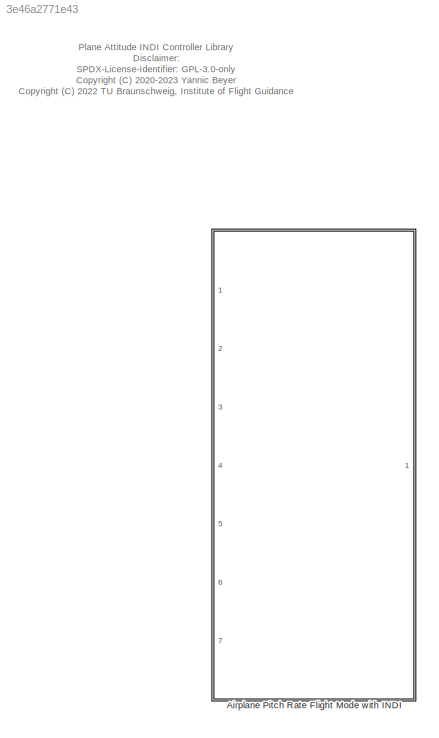
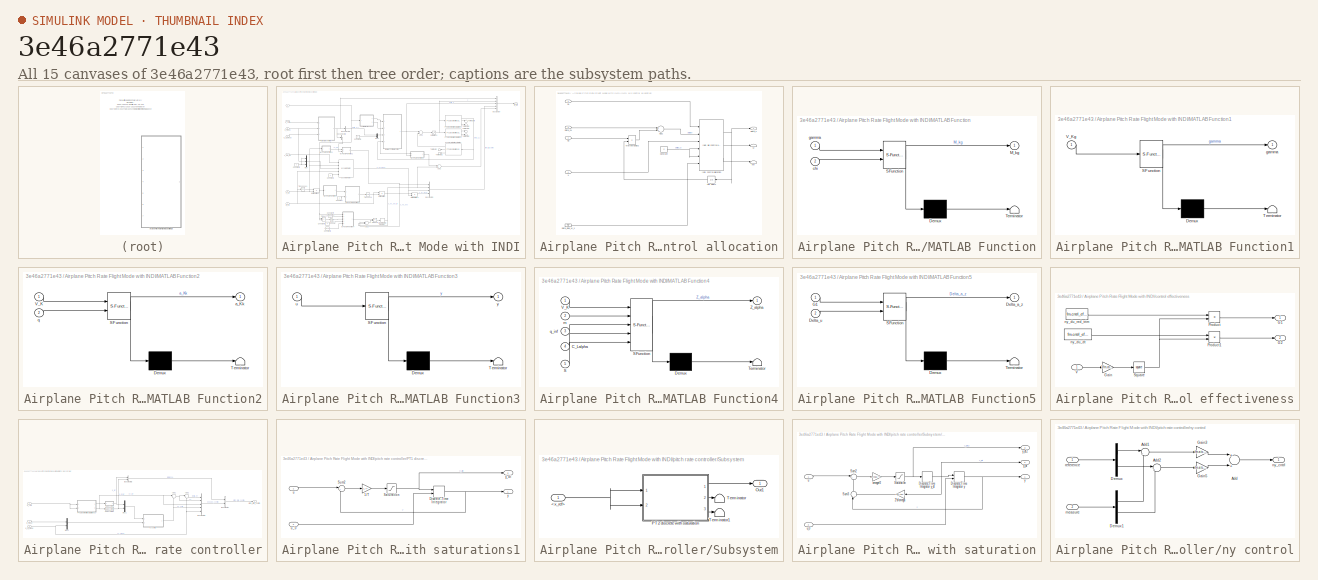
[diagram: thumbnail index - all 15 canvases of the model, root first then tree order]
MODEL slx_3e46a2771e43
KIND library
CONFIG AbsTol = auto
CONFIG EnableMultiTasking = off
CONFIG FixedStep = auto
CONFIG MaxStep = auto
CONFIG MinStep = auto
CONFIG RelTol = 1e-3
CONFIG SampleTimeConstraint = Unconstrained
CONFIG Solver = VariableStepAuto
CONFIG SolverName = VariableStepAuto
CONFIG StartTime = 0.0
CONFIG StopTime = 10.0
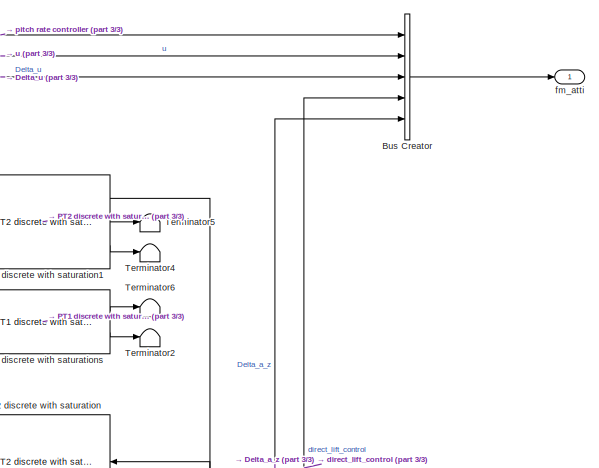
[diagram: Airplane Pitch Rate Flight Mode with INDI - part 1/3, top right region]
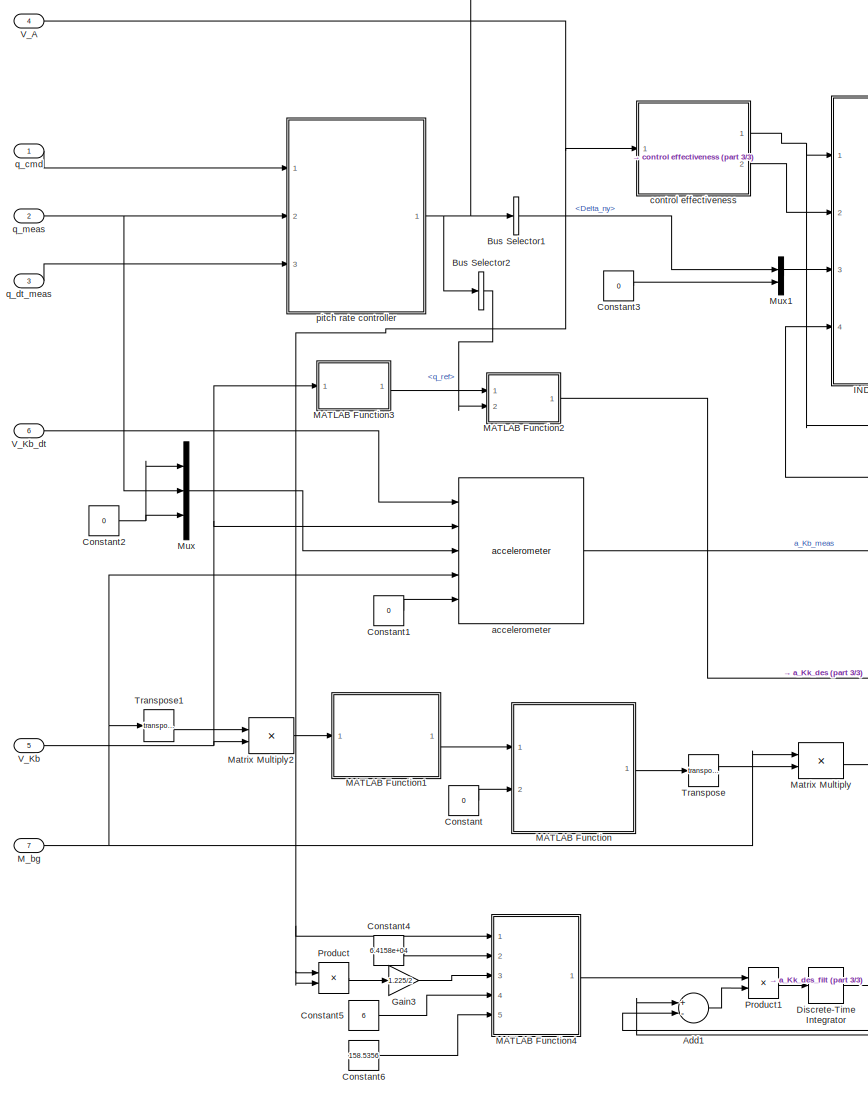
[diagram: Airplane Pitch Rate Flight Mode with INDI - part 2/3, left side, full height]
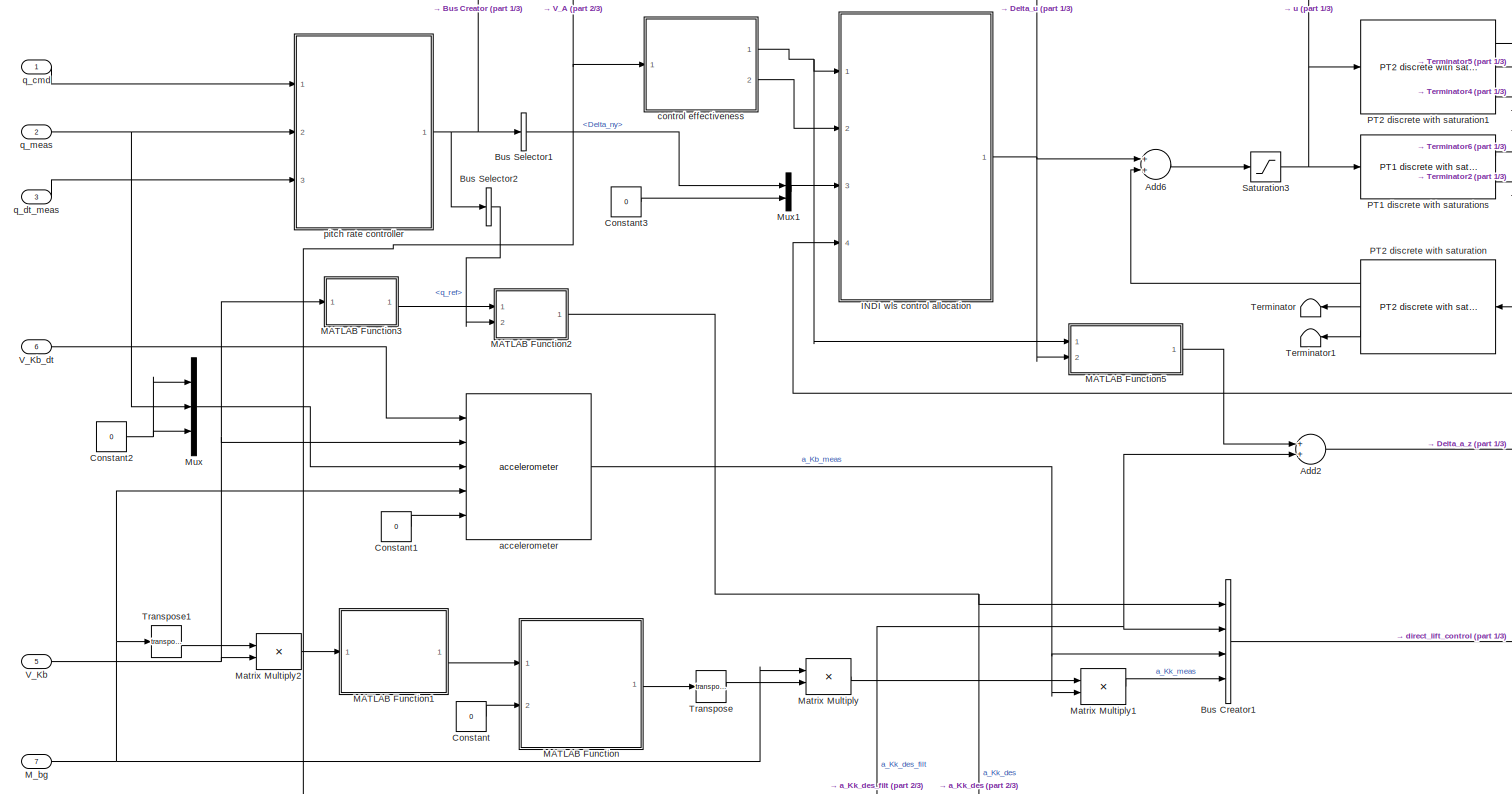
[diagram: Airplane Pitch Rate Flight Mode with INDI - part 3/3, full width, middle band]
BLOCK [SubSystem] Airplane Pitch Rate Flight Mode with INDI
  Ports = [7, 1]
  RequestExecContextInheritance = off
BLOCK [Sum] Airplane Pitch Rate Flight Mode with INDI/Add1
  InputSameDT = off
  Inputs = +-
  OutDataTypeStr = Inherit: Inherit via internal rule
  Ports = [2, 1]
  SaturateOnIntegerOverflow = off
BLOCK [Sum] Airplane Pitch Rate Flight Mode with INDI/Add2
  InputSameDT = off
  OutDataTypeStr = Inherit: Inherit via internal rule
  Ports = [2, 1]
  SaturateOnIntegerOverflow = off
BLOCK [Sum] Airplane Pitch Rate Flight Mode with INDI/Add6
  InputSameDT = off
  OutDataTypeStr = Inherit: Inherit via internal rule
  Ports = [2, 1]
  SaturateOnIntegerOverflow = off
BLOCK [BusCreator] Airplane Pitch Rate Flight Mode with INDI/Bus Creator
  DisplayOption = bar
  InheritFromInputs = on
  Inputs = 5
  Ports = [5, 1]
BLOCK [BusCreator] Airplane Pitch Rate Flight Mode with INDI/Bus Creator1
  DisplayOption = bar
  InheritFromInputs = on
  Inputs = 4
  Ports = [4, 1]
BLOCK [BusSelector] Airplane Pitch Rate Flight Mode with INDI/Bus Selector1
  OutputAsBus = off
  OutputSignals = pseudo_control.Delta_ny
  Ports = [1, 1]
BLOCK [BusSelector] Airplane Pitch Rate Flight Mode with INDI/Bus Selector2
  OutputAsBus = off
  OutputSignals = reference.q_ref
  Ports = [1, 1]
BLOCK [Constant] Airplane Pitch Rate Flight Mode with INDI/Constant
  Value = 0
BLOCK [Constant] Airplane Pitch Rate Flight Mode with INDI/Constant1
  Value = 0
  VectorParams1D = off
BLOCK [Constant] Airplane Pitch Rate Flight Mode with INDI/Constant2
  Value = 0
BLOCK [Constant] Airplane Pitch Rate Flight Mode with INDI/Constant3
  Value = 0
BLOCK [Constant] Airplane Pitch Rate Flight Mode with INDI/Constant4
  Value = 6.4158e+04
BLOCK [Constant] Airplane Pitch Rate Flight Mode with INDI/Constant5
  Value = 6
BLOCK [Constant] Airplane Pitch Rate Flight Mode with INDI/Constant6
  Value = 158.5356
BLOCK [DiscreteIntegrator] Airplane Pitch Rate Flight Mode with INDI/Discrete-Time Integrator
  ICPrevOutput = DiscIntNeverNeededParam
  ICPrevScaledInput = DiscIntNeverNeededParam
  InitialConditionSetting = Auto
  Ports = [1, 1]
  SampleTime = -1
BLOCK [Gain] Airplane Pitch Rate Flight Mode with INDI/Gain3
  Gain = 1.225/2
  OutDataTypeStr = Inherit: Inherit via internal rule
  ParamDataTypeStr = Inherit: Inherit via internal rule
  SaturateOnIntegerOverflow = off
BLOCK [SubSystem] Airplane Pitch Rate Flight Mode with INDI/INDI wls control allocation
  Ports = [4, 1]
  RequestExecContextInheritance = off
BLOCK [Sum] Airplane Pitch Rate Flight Mode with INDI/INDI wls control allocation/Add2
  InputSameDT = off
  OutDataTypeStr = Inherit: Inherit via internal rule
  Ports = [2, 1]
  SaturateOnIntegerOverflow = off
BLOCK [Constant] Airplane Pitch Rate Flight Mode with INDI/INDI wls control allocation/Constant
  Value = 0
BLOCK [Ground] Airplane Pitch Rate Flight Mode with INDI/INDI wls control allocation/Delta_diag_W_v
BLOCK [Inport] Airplane Pitch Rate Flight Mode with INDI/INDI wls control allocation/Delta_nu
  IconDisplay = Port number
  Port = 3
BLOCK [Outport] Airplane Pitch Rate Flight Mode with INDI/INDI wls control allocation/Delta_u
  IconDisplay = Port number
BLOCK [Inport] Airplane Pitch Rate Flight Mode with INDI/INDI wls control allocation/G1
  IconDisplay = Port number
BLOCK [Inport] Airplane Pitch Rate Flight Mode with INDI/INDI wls control allocation/G2
  IconDisplay = Port number
  Port = 2
BLOCK [Reference] Airplane Pitch Rate Flight Mode with INDI/INDI wls control allocation/INDI control allocation  REF=ca_lib/INDI wls control allocation  (lib defined in slx_0f34462aa2fc)
  Ports = [6, 3]
  SourceBlock = ca_lib/INDI wls control allocation
  SourceProductName = LADAC
BLOCK [Product] Airplane Pitch Rate Flight Mode with INDI/INDI wls control allocation/MatrixMultiply2
  InputSameDT = off
  Multiplication = Matrix(*)
  OutDataTypeStr = Inherit: Inherit via internal rule
  Ports = [2, 1]
  RndMeth = Floor
  SaturateOnIntegerOverflow = off
BLOCK [UnitDelay] Airplane Pitch Rate Flight Mode with INDI/INDI wls control allocation/Unit Delay1
  InputProcessing = Elements as channels (sample based)
  SampleTime = -1
BLOCK [Terminator] Airplane Pitch Rate Flight Mode with INDI/INDI wls control allocation/W
BLOCK [Terminator] Airplane Pitch Rate Flight Mode with INDI/INDI wls control allocation/iter
BLOCK [Inport] Airplane Pitch Rate Flight Mode with INDI/INDI wls control allocation/u
  IconDisplay = Port number
  Port = 4
BLOCK [SubSystem] Airplane Pitch Rate Flight Mode with INDI/MATLAB Function
  ErrorFcn = Stateflow.Translate.translate
  PermitHierarchicalResolution = ExplicitOnly
  Ports = [2, 1]
  RequestExecContextInheritance = off
  SFBlockType = MATLAB Function
  TreatAsAtomicUnit = on
BLOCK [Demux] Airplane Pitch Rate Flight Mode with INDI/MATLAB Function/ Demux 
  Outputs = 1
  Ports = [1, 1]
BLOCK [S-Function] Airplane Pitch Rate Flight Mode with INDI/MATLAB Function/ SFunction 
  EnableBusSupport = off
  FunctionName = sf_sfun
  PortCounts = [2 2]
  Ports = [2, 2]
  SFcnIsStateOwnerBlock = off
  SFunctionDeploymentMode = off
  Tag = Stateflow S-Function fmPlaneAttiIndi_lib 1
BLOCK [Terminator] Airplane Pitch Rate Flight Mode with INDI/MATLAB Function/ Terminator 
BLOCK [Outport] Airplane Pitch Rate Flight Mode with INDI/MATLAB Function/M_kg
  IconDisplay = Port number
BLOCK [Inport] Airplane Pitch Rate Flight Mode with INDI/MATLAB Function/chi
  IconDisplay = Port number
  Port = 2
BLOCK [Inport] Airplane Pitch Rate Flight Mode with INDI/MATLAB Function/gamma
  IconDisplay = Port number
BLOCK [SubSystem] Airplane Pitch Rate Flight Mode with INDI/MATLAB Function1
  ErrorFcn = Stateflow.Translate.translate
  PermitHierarchicalResolution = ExplicitOnly
  Ports = [1, 1]
  RequestExecContextInheritance = off
  SFBlockType = MATLAB Function
  TreatAsAtomicUnit = on
BLOCK [Demux] Airplane Pitch Rate Flight Mode with INDI/MATLAB Function1/ Demux 
  Outputs = 1
  Ports = [1, 1]
BLOCK [S-Function] Airplane Pitch Rate Flight Mode with INDI/MATLAB Function1/ SFunction 
  EnableBusSupport = off
  FunctionName = sf_sfun
  PortCounts = [1 2]
  Ports = [1, 2]
  SFcnIsStateOwnerBlock = off
  SFunctionDeploymentMode = off
  Tag = Stateflow S-Function fmPlaneAttiIndi_lib 3
BLOCK [Terminator] Airplane Pitch Rate Flight Mode with INDI/MATLAB Function1/ Terminator 
BLOCK [Inport] Airplane Pitch Rate Flight Mode with INDI/MATLAB Function1/V_Kg
  IconDisplay = Port number
BLOCK [Outport] Airplane Pitch Rate Flight Mode with INDI/MATLAB Function1/gamma
  IconDisplay = Port number
BLOCK [SubSystem] Airplane Pitch Rate Flight Mode with INDI/MATLAB Function2
  ErrorFcn = Stateflow.Translate.translate
  PermitHierarchicalResolution = ExplicitOnly
  Ports = [2, 1]
  RequestExecContextInheritance = off
  SFBlockType = MATLAB Function
  TreatAsAtomicUnit = on
BLOCK [Demux] Airplane Pitch Rate Flight Mode with INDI/MATLAB Function2/ Demux 
  Outputs = 1
  Ports = [1, 1]
BLOCK [S-Function] Airplane Pitch Rate Flight Mode with INDI/MATLAB Function2/ SFunction 
  EnableBusSupport = off
  FunctionName = sf_sfun
  PortCounts = [2 2]
  Ports = [2, 2]
  SFcnIsStateOwnerBlock = off
  SFunctionDeploymentMode = off
  Tag = Stateflow S-Function fmPlaneAttiIndi_lib 4
BLOCK [Terminator] Airplane Pitch Rate Flight Mode with INDI/MATLAB Function2/ Terminator 
BLOCK [Inport] Airplane Pitch Rate Flight Mode with INDI/MATLAB Function2/V_K
  IconDisplay = Port number
BLOCK [Outport] Airplane Pitch Rate Flight Mode with INDI/MATLAB Function2/a_Kk
  IconDisplay = Port number
BLOCK [Inport] Airplane Pitch Rate Flight Mode with INDI/MATLAB Function2/q
  IconDisplay = Port number
  Port = 2
BLOCK [SubSystem] Airplane Pitch Rate Flight Mode with INDI/MATLAB Function3
  ErrorFcn = Stateflow.Translate.translate
  PermitHierarchicalResolution = ExplicitOnly
  Ports = [1, 1]
  RequestExecContextInheritance = off
  SFBlockType = MATLAB Function
  TreatAsAtomicUnit = on
BLOCK [Demux] Airplane Pitch Rate Flight Mode with INDI/MATLAB Function3/ Demux 
  Outputs = 1
  Ports = [1, 1]
BLOCK [S-Function] Airplane Pitch Rate Flight Mode with INDI/MATLAB Function3/ SFunction 
  EnableBusSupport = off
  FunctionName = sf_sfun
  PortCounts = [1 2]
  Ports = [1, 2]
  SFcnIsStateOwnerBlock = off
  SFunctionDeploymentMode = off
  Tag = Stateflow S-Function fmPlaneAttiIndi_lib 5
BLOCK [Terminator] Airplane Pitch Rate Flight Mode with INDI/MATLAB Function3/ Terminator 
BLOCK [Inport] Airplane Pitch Rate Flight Mode with INDI/MATLAB Function3/u
  IconDisplay = Port number
BLOCK [Outport] Airplane Pitch Rate Flight Mode with INDI/MATLAB Function3/y
  IconDisplay = Port number
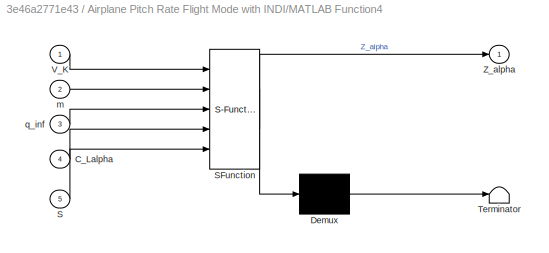
BLOCK [SubSystem] Airplane Pitch Rate Flight Mode with INDI/MATLAB Function4
  ErrorFcn = Stateflow.Translate.translate
  PermitHierarchicalResolution = ExplicitOnly
  Ports = [5, 1]
  RequestExecContextInheritance = off
  SFBlockType = MATLAB Function
  TreatAsAtomicUnit = on
BLOCK [Demux] Airplane Pitch Rate Flight Mode with INDI/MATLAB Function4/ Demux 
  Outputs = 1
  Ports = [1, 1]
BLOCK [S-Function] Airplane Pitch Rate Flight Mode with INDI/MATLAB Function4/ SFunction 
  EnableBusSupport = off
  FunctionName = sf_sfun
  PortCounts = [5 2]
  Ports = [5, 2]
  SFcnIsStateOwnerBlock = off
  SFunctionDeploymentMode = off
  Tag = Stateflow S-Function fmPlaneAttiIndi_lib 6
BLOCK [Terminator] Airplane Pitch Rate Flight Mode with INDI/MATLAB Function4/ Terminator 
BLOCK [Inport] Airplane Pitch Rate Flight Mode with INDI/MATLAB Function4/C_Lalpha
  IconDisplay = Port number
  Port = 4
BLOCK [Inport] Airplane Pitch Rate Flight Mode with INDI/MATLAB Function4/S
  IconDisplay = Port number
  Port = 5
BLOCK [Inport] Airplane Pitch Rate Flight Mode with INDI/MATLAB Function4/V_K
  IconDisplay = Port number
BLOCK [Outport] Airplane Pitch Rate Flight Mode with INDI/MATLAB Function4/Z_alpha
  IconDisplay = Port number
BLOCK [Inport] Airplane Pitch Rate Flight Mode with INDI/MATLAB Function4/m
  IconDisplay = Port number
  Port = 2
BLOCK [Inport] Airplane Pitch Rate Flight Mode with INDI/MATLAB Function4/q_inf
  IconDisplay = Port number
  Port = 3
BLOCK [SubSystem] Airplane Pitch Rate Flight Mode with INDI/MATLAB Function5
  ErrorFcn = Stateflow.Translate.translate
  PermitHierarchicalResolution = ExplicitOnly
  Ports = [2, 1]
  RequestExecContextInheritance = off
  SFBlockType = MATLAB Function
  TreatAsAtomicUnit = on
BLOCK [Demux] Airplane Pitch Rate Flight Mode with INDI/MATLAB Function5/ Demux 
  Outputs = 1
  Ports = [1, 1]
BLOCK [S-Function] Airplane Pitch Rate Flight Mode with INDI/MATLAB Function5/ SFunction 
  EnableBusSupport = off
  FunctionName = sf_sfun
  PortCounts = [2 2]
  Ports = [2, 2]
  SFcnIsStateOwnerBlock = off
  SFunctionDeploymentMode = off
  Tag = Stateflow S-Function fmPlaneAttiIndi_lib 7
BLOCK [Terminator] Airplane Pitch Rate Flight Mode with INDI/MATLAB Function5/ Terminator 
BLOCK [Outport] Airplane Pitch Rate Flight Mode with INDI/MATLAB Function5/Delta_a_z
  IconDisplay = Port number
BLOCK [Inport] Airplane Pitch Rate Flight Mode with INDI/MATLAB Function5/Delta_u
  IconDisplay = Port number
  Port = 2
BLOCK [Inport] Airplane Pitch Rate Flight Mode with INDI/MATLAB Function5/G1
  IconDisplay = Port number
BLOCK [Inport] Airplane Pitch Rate Flight Mode with INDI/M_bg
  IconDisplay = Port number
  Port = 7
  SampleTime = fm.sample_time
BLOCK [Product] Airplane Pitch Rate Flight Mode with INDI/Matrix Multiply
  InputSameDT = off
  Multiplication = Matrix(*)
  OutDataTypeStr = Inherit: Inherit via internal rule
  Ports = [2, 1]
  RndMeth = Floor
  SaturateOnIntegerOverflow = off
BLOCK [Product] Airplane Pitch Rate Flight Mode with INDI/Matrix Multiply1
  InputSameDT = off
  Multiplication = Matrix(*)
  OutDataTypeStr = Inherit: Inherit via internal rule
  Ports = [2, 1]
  RndMeth = Floor
  SaturateOnIntegerOverflow = off
BLOCK [Product] Airplane Pitch Rate Flight Mode with INDI/Matrix Multiply2
  InputSameDT = off
  Multiplication = Matrix(*)
  OutDataTypeStr = Inherit: Inherit via internal rule
  Ports = [2, 1]
  RndMeth = Floor
  SaturateOnIntegerOverflow = off
BLOCK [Mux] Airplane Pitch Rate Flight Mode with INDI/Mux
  DisplayOption = bar
  Inputs = 3
  Ports = [3, 1]
BLOCK [Mux] Airplane Pitch Rate Flight Mode with INDI/Mux1
  DisplayOption = bar
  Inputs = 2
  Ports = [2, 1]
BLOCK [Reference] Airplane Pitch Rate Flight Mode with INDI/PT1 discrete with saturations  REF=filters_lib/PT1 discrete with saturations  (lib defined in slx_a584fcc4ebc5)
  Ports = [1, 2]
  SourceBlock = filters_lib/PT1 discrete with saturations
  SourceProductName = LADAC
BLOCK [Reference] Airplane Pitch Rate Flight Mode with INDI/PT2 discrete with saturation  REF=filters_lib/PT2 discrete with saturation  (lib defined in slx_a584fcc4ebc5)
  Ports = [1, 3]
  SourceBlock = filters_lib/PT2 discrete with saturation
  SourceProductName = LADAC
BLOCK [Reference] Airplane Pitch Rate Flight Mode with INDI/PT2 discrete with saturation1  REF=filters_lib/PT2 discrete with saturation  (lib defined in slx_a584fcc4ebc5)
  Ports = [1, 3]
  SourceBlock = filters_lib/PT2 discrete with saturation
  SourceProductName = LADAC
BLOCK [Product] Airplane Pitch Rate Flight Mode with INDI/Product
  InputSameDT = off
  OutDataTypeStr = Inherit: Inherit via internal rule
  Ports = [2, 1]
  RndMeth = Floor
  SaturateOnIntegerOverflow = off
BLOCK [Product] Airplane Pitch Rate Flight Mode with INDI/Product1
  InputSameDT = off
  OutDataTypeStr = Inherit: Inherit via internal rule
  Ports = [2, 1]
  RndMeth = Floor
  SaturateOnIntegerOverflow = off
BLOCK [Saturate] Airplane Pitch Rate Flight Mode with INDI/Saturation3
  InputPortMap = u0
  LowerLimit = fm.ca.u_min
  Ports = [1, 1]
  UpperLimit = fm.ca.u_max
BLOCK [Terminator] Airplane Pitch Rate Flight Mode with INDI/Terminator
BLOCK [Terminator] Airplane Pitch Rate Flight Mode with INDI/Terminator1
BLOCK [Terminator] Airplane Pitch Rate Flight Mode with INDI/Terminator2
BLOCK [Terminator] Airplane Pitch Rate Flight Mode with INDI/Terminator4
BLOCK [Terminator] Airplane Pitch Rate Flight Mode with INDI/Terminator5
BLOCK [Terminator] Airplane Pitch Rate Flight Mode with INDI/Terminator6
BLOCK [Math] Airplane Pitch Rate Flight Mode with INDI/Transpose
  Operator = transpose
  Ports = [1, 1]
BLOCK [Math] Airplane Pitch Rate Flight Mode with INDI/Transpose1
  Operator = transpose
  Ports = [1, 1]
BLOCK [Inport] Airplane Pitch Rate Flight Mode with INDI/V_A
  IconDisplay = Port number
  Port = 4
  SampleTime = fm.sample_time
BLOCK [Inport] Airplane Pitch Rate Flight Mode with INDI/V_Kb
  IconDisplay = Port number
  Port = 5
  SampleTime = fm.sample_time
BLOCK [Inport] Airplane Pitch Rate Flight Mode with INDI/V_Kb_dt
  IconDisplay = Port number
  Port = 6
  SampleTime = fm.sample_time
BLOCK [Reference] Airplane Pitch Rate Flight Mode with INDI/accelerometer  REF=sensors_lib/accelerometer  (lib defined in mdl_052e9be48c24, mdl_88e42053cf8c, +1 more)
  Ports = [5, 1]
  SourceBlock = sensors_lib/accelerometer
  SourceProductName = LADAC
  SourceType = SubSystem
BLOCK [SubSystem] Airplane Pitch Rate Flight Mode with INDI/control effectiveness
  Ports = [1, 2]
  RequestExecContextInheritance = off
BLOCK [Outport] Airplane Pitch Rate Flight Mode with INDI/control effectiveness/G1
  IconDisplay = Port number
BLOCK [Outport] Airplane Pitch Rate Flight Mode with INDI/control effectiveness/G2
  IconDisplay = Port number
  Port = 2
BLOCK [Gain] Airplane Pitch Rate Flight Mode with INDI/control effectiveness/Gain
  Gain = 1/fm.cntrl_effect.V_trim
  OutDataTypeStr = Inherit: Inherit via internal rule
  ParamDataTypeStr = Inherit: Inherit via internal rule
  SaturateOnIntegerOverflow = off
BLOCK [Product] Airplane Pitch Rate Flight Mode with INDI/control effectiveness/Product
  InputSameDT = off
  OutDataTypeStr = Inherit: Inherit via internal rule
  Ports = [2, 1]
  RndMeth = Floor
  SaturateOnIntegerOverflow = off
BLOCK [Product] Airplane Pitch Rate Flight Mode with INDI/control effectiveness/Product1
  InputSameDT = off
  OutDataTypeStr = Inherit: Inherit via internal rule
  Ports = [2, 1]
  RndMeth = Floor
  SaturateOnIntegerOverflow = off
BLOCK [Math] Airplane Pitch Rate Flight Mode with INDI/control effectiveness/Square
  Operator = square
  Ports = [1, 1]
BLOCK [Inport] Airplane Pitch Rate Flight Mode with INDI/control effectiveness/V
  IconDisplay = Port number
BLOCK [Constant] Airplane Pitch Rate Flight Mode with INDI/control effectiveness/ny_du_dt
  Value = fm.cntrl_effect.ny_du_dt
BLOCK [Constant] Airplane Pitch Rate Flight Mode with INDI/control effectiveness/ny_du_red_trim
  Value = fm.cntrl_effect.ny_du_red
BLOCK [Outport] Airplane Pitch Rate Flight Mode with INDI/fm_atti
  IconDisplay = Port number
  SampleTime = fm.sample_time
  SamplingMode = Sample based
  SignalType = real
BLOCK [SubSystem] Airplane Pitch Rate Flight Mode with INDI/pitch rate controller
  Ports = [3, 1]
  RequestExecContextInheritance = off
BLOCK [Sum] Airplane Pitch Rate Flight Mode with INDI/pitch rate controller/Add1
  IconShape = round
  InputSameDT = off
  Inputs = |++
  OutDataTypeStr = Inherit: Inherit via internal rule
  Ports = [2, 1]
  SaturateOnIntegerOverflow = off
BLOCK [Sum] Airplane Pitch Rate Flight Mode with INDI/pitch rate controller/Add2
  IconShape = round
  InputSameDT = off
  Inputs = |+-
  OutDataTypeStr = Inherit: Inherit via internal rule
  Ports = [2, 1]
  SaturateOnIntegerOverflow = off
BLOCK [BusCreator] Airplane Pitch Rate Flight Mode with INDI/pitch rate controller/Bus Creator
  DisplayOption = bar
  InheritFromInputs = on
  Inputs = 2
  Ports = [2, 1]
BLOCK [BusCreator] Airplane Pitch Rate Flight Mode with INDI/pitch rate controller/Bus Creator1
  DisplayOption = bar
  InheritFromInputs = on
  Inputs = 5
  Ports = [5, 1]
BLOCK [BusCreator] Airplane Pitch Rate Flight Mode with INDI/pitch rate controller/Bus Creator2
  DisplayOption = bar
  InheritFromInputs = on
  Inputs = 2
  Ports = [2, 1]
BLOCK [Mux] Airplane Pitch Rate Flight Mode with INDI/pitch rate controller/Mux1
  DisplayOption = bar
  Inputs = 2
  Ports = [2, 1]
BLOCK [Mux] Airplane Pitch Rate Flight Mode with INDI/pitch rate controller/Mux2
  DisplayOption = bar
  Inputs = 2
  Ports = [2, 1]
BLOCK [SubSystem] Airplane Pitch Rate Flight Mode with INDI/pitch rate controller/PT1 discrete with saturations1
  Ports = [2, 2]
  RequestExecContextInheritance = off
BLOCK [Gain] Airplane Pitch Rate Flight Mode with INDI/pitch rate controller/PT1 discrete with saturations1/1//T
  Gain = 1./T
  OutDataTypeStr = Inherit: Inherit via internal rule
  ParamDataTypeStr = Inherit: Inherit via internal rule
  SaturateOnIntegerOverflow = off
BLOCK [DiscreteIntegrator] Airplane Pitch Rate Flight Mode with INDI/pitch rate controller/PT1 discrete with saturations1/Discrete-Time Integrator
  ICPrevOutput = DiscIntNeverNeededParam
  ICPrevScaledInput = DiscIntNeverNeededParam
  InitialCondition = x_init
  InitialConditionSetting = Auto
  InitialConditionSource = external
  LimitOutput = on
  LowerSaturationLimit = x_min
  Ports = [2, 1]
  SampleTime = -1
  UpperSaturationLimit = x_max
BLOCK [Saturate] Airplane Pitch Rate Flight Mode with INDI/pitch rate controller/PT1 discrete with saturations1/Saturation
  InputPortMap = u0
  LowerLimit = x_dt_min
  Ports = [1, 1]
  UpperLimit = x_dt_max
BLOCK [Sum] Airplane Pitch Rate Flight Mode with INDI/pitch rate controller/PT1 discrete with saturations1/Sum2
  IconShape = round
  InputSameDT = off
  Inputs = |+-
  OutDataTypeStr = Inherit: Inherit via internal rule
  Ports = [2, 1]
  SaturateOnIntegerOverflow = off
BLOCK [Inport] Airplane Pitch Rate Flight Mode with INDI/pitch rate controller/PT1 discrete with saturations1/u
  IconDisplay = Port number
BLOCK [Inport] Airplane Pitch Rate Flight Mode with INDI/pitch rate controller/PT1 discrete with saturations1/u_0 
  IconDisplay = Port number
  Port = 2
BLOCK [Outport] Airplane Pitch Rate Flight Mode with INDI/pitch rate controller/PT1 discrete with saturations1/y
  IconDisplay = Port number
BLOCK [Outport] Airplane Pitch Rate Flight Mode with INDI/pitch rate controller/PT1 discrete with saturations1/y_dt
  IconDisplay = Port number
  Port = 2
BLOCK [SubSystem] Airplane Pitch Rate Flight Mode with INDI/pitch rate controller/Subsystem
  Ports = [1, 1]
  RequestExecContextInheritance = off
BLOCK [Inport] Airplane Pitch Rate Flight Mode with INDI/pitch rate controller/Subsystem/<x_ref>
  IconDisplay = Port number
BLOCK [Outport] Airplane Pitch Rate Flight Mode with INDI/pitch rate controller/Subsystem/Out1
  IconDisplay = Port number
BLOCK [SubSystem] Airplane Pitch Rate Flight Mode with INDI/pitch rate controller/Subsystem/PT2 discrete with saturation
  Ports = [2, 3]
  RequestExecContextInheritance = off
BLOCK [Gain] Airplane Pitch Rate Flight Mode with INDI/pitch rate controller/Subsystem/PT2 discrete with saturation/2*d//omega
  Gain = 2*d./omega
  OutDataTypeStr = Inherit: Inherit via internal rule
  ParamDataTypeStr = Inherit: Inherit via internal rule
  SaturateOnIntegerOverflow = off
BLOCK [DiscreteIntegrator] Airplane Pitch Rate Flight Mode with INDI/pitch rate controller/Subsystem/PT2 discrete with saturation/Discrete-Time Integrator y
  ICPrevOutput = DiscIntNeverNeededParam
  ICPrevScaledInput = DiscIntNeverNeededParam
  InitialCondition = x_init
  InitialConditionSetting = Auto
  InitialConditionSource = external
  LimitOutput = on
  LowerSaturationLimit = x_min
  OutDataTypeStr = Inherit: Inherit via back propagation
  Ports = [2, 1]
  SampleTime = -1
  UpperSaturationLimit = x_max
BLOCK [DiscreteIntegrator] Airplane Pitch Rate Flight Mode with INDI/pitch rate controller/Subsystem/PT2 discrete with saturation/Discrete-Time Integrator y_dt
  ICPrevOutput = DiscIntNeverNeededParam
  ICPrevScaledInput = DiscIntNeverNeededParam
  InitialCondition = x_dt_init
  InitialConditionSetting = Auto
  LimitOutput = on
  LowerSaturationLimit = x_dt_min
  OutDataTypeStr = Inherit: Inherit via back propagation
  Ports = [1, 1]
  SampleTime = -1
  UpperSaturationLimit = x_dt_max
BLOCK [Saturate] Airplane Pitch Rate Flight Mode with INDI/pitch rate controller/Subsystem/PT2 discrete with saturation/Saturation
  InputPortMap = u0
  LowerLimit = x_dt2_min
  Ports = [1, 1]
  UpperLimit = x_dt2_max
BLOCK [Sum] Airplane Pitch Rate Flight Mode with INDI/pitch rate controller/Subsystem/PT2 discrete with saturation/Sum2
  IconShape = round
  InputSameDT = off
  Inputs = |+-
  OutDataTypeStr = Inherit: Inherit via internal rule
  Ports = [2, 1]
  SaturateOnIntegerOverflow = off
BLOCK [Sum] Airplane Pitch Rate Flight Mode with INDI/pitch rate controller/Subsystem/PT2 discrete with saturation/Sum3
  IconShape = round
  InputSameDT = off
  Inputs = |++
  OutDataTypeStr = Inherit: Inherit via internal rule
  Ports = [2, 1]
  SaturateOnIntegerOverflow = off
BLOCK [Gain] Airplane Pitch Rate Flight Mode with INDI/pitch rate controller/Subsystem/PT2 discrete with saturation/omega^2
  Gain = omega.^2
  OutDataTypeStr = Inherit: Inherit via internal rule
  ParamDataTypeStr = Inherit: Inherit via internal rule
  SaturateOnIntegerOverflow = off
BLOCK [Inport] Airplane Pitch Rate Flight Mode with INDI/pitch rate controller/Subsystem/PT2 discrete with saturation/u
  IconDisplay = Port number
BLOCK [Inport] Airplane Pitch Rate Flight Mode with INDI/pitch rate controller/Subsystem/PT2 discrete with saturation/u_0
  IconDisplay = Port number
  Port = 2
BLOCK [Outport] Airplane Pitch Rate Flight Mode with INDI/pitch rate controller/Subsystem/PT2 discrete with saturation/y
  IconDisplay = Port number
BLOCK [Outport] Airplane Pitch Rate Flight Mode with INDI/pitch rate controller/Subsystem/PT2 discrete with saturation/y_dt
  IconDisplay = Port number
  Port = 2
BLOCK [Outport] Airplane Pitch Rate Flight Mode with INDI/pitch rate controller/Subsystem/PT2 discrete with saturation/y_dt2
  IconDisplay = Port number
  Port = 3
BLOCK [Terminator] Airplane Pitch Rate Flight Mode with INDI/pitch rate controller/Subsystem/Terminator
BLOCK [Terminator] Airplane Pitch Rate Flight Mode with INDI/pitch rate controller/Subsystem/Terminator1
BLOCK [Reference] Airplane Pitch Rate Flight Mode with INDI/pitch rate controller/Subsystem1  REF=$bdroot/Airplane Pitch Rate Flight Mode with INDI/pitch rate controller/Subsystem
  Ports = [1, 1]
  SourceBlock = $bdroot/Airplane Pitch Rate Flight Mode with INDI/pitch rate controller/Subsystem
  SourceType = SubSystem
BLOCK [SubSystem] Airplane Pitch Rate Flight Mode with INDI/pitch rate controller/ny control
  Ports = [2, 1]
  RequestExecContextInheritance = off
BLOCK [Sum] Airplane Pitch Rate Flight Mode with INDI/pitch rate controller/ny control/Add
  InputSameDT = off
  Inputs = 2
  OutDataTypeStr = Inherit: Inherit via internal rule
  Ports = [2, 1]
  SaturateOnIntegerOverflow = off
BLOCK [Sum] Airplane Pitch Rate Flight Mode with INDI/pitch rate controller/ny control/Add1
  IconShape = round
  InputSameDT = off
  Inputs = |+-
  OutDataTypeStr = Inherit: Inherit via internal rule
  Ports = [2, 1]
  SaturateOnIntegerOverflow = off
BLOCK [Sum] Airplane Pitch Rate Flight Mode with INDI/pitch rate controller/ny control/Add2
  IconShape = round
  InputSameDT = off
  Inputs = |+-
  OutDataTypeStr = Inherit: Inherit via internal rule
  Ports = [2, 1]
  SaturateOnIntegerOverflow = off
BLOCK [Demux] Airplane Pitch Rate Flight Mode with INDI/pitch rate controller/ny control/Demux
  DisplayOption = bar
  Outputs = 2
  Ports = [1, 2]
BLOCK [Demux] Airplane Pitch Rate Flight Mode with INDI/pitch rate controller/ny control/Demux1
  DisplayOption = bar
  Outputs = 2
  Ports = [1, 2]
BLOCK [Gain] Airplane Pitch Rate Flight Mode with INDI/pitch rate controller/ny control/Gain3
  Gain = fm.atc.k.leanrate
  OutDataTypeStr = Inherit: Inherit via internal rule
  ParamDataTypeStr = Inherit: Inherit via internal rule
  SaturateOnIntegerOverflow = off
BLOCK [Gain] Airplane Pitch Rate Flight Mode with INDI/pitch rate controller/ny control/Gain5
  Gain = fm.atc.k.leanacc
  OutDataTypeStr = Inherit: Inherit via internal rule
  ParamDataTypeStr = Inherit: Inherit via internal rule
  SaturateOnIntegerOverflow = off
BLOCK [Inport] Airplane Pitch Rate Flight Mode with INDI/pitch rate controller/ny control/measure
  IconDisplay = Port number
  Port = 2
BLOCK [Outport] Airplane Pitch Rate Flight Mode with INDI/pitch rate controller/ny control/ny_cntrl
  IconDisplay = Port number
BLOCK [Inport] Airplane Pitch Rate Flight Mode with INDI/pitch rate controller/ny control/reference
  IconDisplay = Port number
BLOCK [Outport] Airplane Pitch Rate Flight Mode with INDI/pitch rate controller/pitch_rate_control
  IconDisplay = Port number
BLOCK [Inport] Airplane Pitch Rate Flight Mode with INDI/pitch rate controller/q_cmd
  IconDisplay = Port number
BLOCK [Inport] Airplane Pitch Rate Flight Mode with INDI/pitch rate controller/q_dt_meas
  IconDisplay = Port number
  Port = 3
BLOCK [Inport] Airplane Pitch Rate Flight Mode with INDI/pitch rate controller/q_meas
  IconDisplay = Port number
  Port = 2
BLOCK [Inport] Airplane Pitch Rate Flight Mode with INDI/q_cmd
  IconDisplay = Port number
  SampleTime = fm.sample_time
BLOCK [Inport] Airplane Pitch Rate Flight Mode with INDI/q_dt_meas
  IconDisplay = Port number
  Port = 3
  SampleTime = fm.sample_time
BLOCK [Inport] Airplane Pitch Rate Flight Mode with INDI/q_meas
  IconDisplay = Port number
  Port = 2
  SampleTime = fm.sample_time
ANNOTATION (root): Plane Attitude INDI Controller Library Disclaimer: SPDX-License-Identifier: GPL-3.0-only <copyright redacted>
LINE Airplane Pitch Rate Flight Mode with INDI/Add1:1 -> Airplane Pitch Rate Flight Mode with INDI/Product1:2
LINE Airplane Pitch Rate Flight Mode with INDI/Add2:1 -> Airplane Pitch Rate Flight Mode with INDI/Bus Creator:5
LINE Airplane Pitch Rate Flight Mode with INDI/Add6:1 -> Airplane Pitch Rate Flight Mode with INDI/Saturation3:1
LINE Airplane Pitch Rate Flight Mode with INDI/Bus Creator1:1 -> Airplane Pitch Rate Flight Mode with INDI/Bus Creator:4
LINE Airplane Pitch Rate Flight Mode with INDI/Bus Creator:1 -> Airplane Pitch Rate Flight Mode with INDI/fm_atti:1
LINE Airplane Pitch Rate Flight Mode with INDI/Bus Selector1:1 -> Airplane Pitch Rate Flight Mode with INDI/Mux1:1
LINE Airplane Pitch Rate Flight Mode with INDI/Bus Selector2:1 -> Airplane Pitch Rate Flight Mode with INDI/MATLAB Function2:2
LINE Airplane Pitch Rate Flight Mode with INDI/Constant1:1 -> Airplane Pitch Rate Flight Mode with INDI/accelerometer:5
NET Airplane Pitch Rate Flight Mode with INDI/Constant2:1 -> Airplane Pitch Rate Flight Mode with INDI/Mux:1, Airplane Pitch Rate Flight Mode with INDI/Mux:3
LINE Airplane Pitch Rate Flight Mode with INDI/Constant3:1 -> Airplane Pitch Rate Flight Mode with INDI/Mux1:2
LINE Airplane Pitch Rate Flight Mode with INDI/Constant4:1 -> Airplane Pitch Rate Flight Mode with INDI/MATLAB Function4:2
LINE Airplane Pitch Rate Flight Mode with INDI/Constant5:1 -> Airplane Pitch Rate Flight Mode with INDI/MATLAB Function4:4
LINE Airplane Pitch Rate Flight Mode with INDI/Constant6:1 -> Airplane Pitch Rate Flight Mode with INDI/MATLAB Function4:5
LINE Airplane Pitch Rate Flight Mode with INDI/Constant:1 -> Airplane Pitch Rate Flight Mode with INDI/MATLAB Function:2
NET Airplane Pitch Rate Flight Mode with INDI/Discrete-Time Integrator:1 -> Airplane Pitch Rate Flight Mode with INDI/Add1:2, Airplane Pitch Rate Flight Mode with INDI/Add2:2, Airplane Pitch Rate Flight Mode with INDI/Bus Creator1:2
LINE Airplane Pitch Rate Flight Mode with INDI/Gain3:1 -> Airplane Pitch Rate Flight Mode with INDI/MATLAB Function4:3
NET Airplane Pitch Rate Flight Mode with INDI/INDI wls control allocation:1 -> Airplane Pitch Rate Flight Mode with INDI/Add6:1, Airplane Pitch Rate Flight Mode with INDI/Bus Creator:3, Airplane Pitch Rate Flight Mode with INDI/MATLAB Function5:2
LINE Airplane Pitch Rate Flight Mode with INDI/MATLAB Function1:1 -> Airplane Pitch Rate Flight Mode with INDI/MATLAB Function:1
NET Airplane Pitch Rate Flight Mode with INDI/MATLAB Function2:1 -> Airplane Pitch Rate Flight Mode with INDI/Add1:1, Airplane Pitch Rate Flight Mode with INDI/Bus Creator1:1
LINE Airplane Pitch Rate Flight Mode with INDI/MATLAB Function3:1 -> Airplane Pitch Rate Flight Mode with INDI/MATLAB Function2:1
LINE Airplane Pitch Rate Flight Mode with INDI/MATLAB Function4:1 -> Airplane Pitch Rate Flight Mode with INDI/Product1:1
LINE Airplane Pitch Rate Flight Mode with INDI/MATLAB Function5:1 -> Airplane Pitch Rate Flight Mode with INDI/Add2:1
LINE Airplane Pitch Rate Flight Mode with INDI/MATLAB Function:1 -> Airplane Pitch Rate Flight Mode with INDI/Transpose:1
NET Airplane Pitch Rate Flight Mode with INDI/M_bg:1 -> Airplane Pitch Rate Flight Mode with INDI/Matrix Multiply:1, Airplane Pitch Rate Flight Mode with INDI/Transpose1:1, Airplane Pitch Rate Flight Mode with INDI/accelerometer:4
LINE Airplane Pitch Rate Flight Mode with INDI/Matrix Multiply1:1 -> Airplane Pitch Rate Flight Mode with INDI/Bus Creator1:4
LINE Airplane Pitch Rate Flight Mode with INDI/Matrix Multiply2:1 -> Airplane Pitch Rate Flight Mode with INDI/MATLAB Function1:1
LINE Airplane Pitch Rate Flight Mode with INDI/Matrix Multiply:1 -> Airplane Pitch Rate Flight Mode with INDI/Matrix Multiply1:1
LINE Airplane Pitch Rate Flight Mode with INDI/Mux1:1 -> Airplane Pitch Rate Flight Mode with INDI/INDI wls control allocation:3
LINE Airplane Pitch Rate Flight Mode with INDI/Mux:1 -> Airplane Pitch Rate Flight Mode with INDI/accelerometer:3
LINE Airplane Pitch Rate Flight Mode with INDI/PT1 discrete with saturations:1 -> Airplane Pitch Rate Flight Mode with INDI/Terminator6:1
LINE Airplane Pitch Rate Flight Mode with INDI/PT1 discrete with saturations:2 -> Airplane Pitch Rate Flight Mode with INDI/Terminator2:1
NET Airplane Pitch Rate Flight Mode with INDI/PT2 discrete with saturation1:1 -> Airplane Pitch Rate Flight Mode with INDI/INDI wls control allocation:4, Airplane Pitch Rate Flight Mode with INDI/PT2 discrete with saturation:1
LINE Airplane Pitch Rate Flight Mode with INDI/PT2 discrete with saturation1:2 -> Airplane Pitch Rate Flight Mode with INDI/Terminator5:1
LINE Airplane Pitch Rate Flight Mode with INDI/PT2 discrete with saturation1:3 -> Airplane Pitch Rate Flight Mode with INDI/Terminator4:1
LINE Airplane Pitch Rate Flight Mode with INDI/PT2 discrete with saturation:1 -> Airplane Pitch Rate Flight Mode with INDI/Add6:2
LINE Airplane Pitch Rate Flight Mode with INDI/PT2 discrete with saturation:2 -> Airplane Pitch Rate Flight Mode with INDI/Terminator:1
LINE Airplane Pitch Rate Flight Mode with INDI/PT2 discrete with saturation:3 -> Airplane Pitch Rate Flight Mode with INDI/Terminator1:1
LINE Airplane Pitch Rate Flight Mode with INDI/Product1:1 -> Airplane Pitch Rate Flight Mode with INDI/Discrete-Time Integrator:1
LINE Airplane Pitch Rate Flight Mode with INDI/Product:1 -> Airplane Pitch Rate Flight Mode with INDI/Gain3:1
NET Airplane Pitch Rate Flight Mode with INDI/Saturation3:1 -> Airplane Pitch Rate Flight Mode with INDI/Bus Creator:2, Airplane Pitch Rate Flight Mode with INDI/PT1 discrete with saturations:1, Airplane Pitch Rate Flight Mode with INDI/PT2 discrete with saturation1:1
LINE Airplane Pitch Rate Flight Mode with INDI/Transpose1:1 -> Airplane Pitch Rate Flight Mode with INDI/Matrix Multiply2:1
LINE Airplane Pitch Rate Flight Mode with INDI/Transpose:1 -> Airplane Pitch Rate Flight Mode with INDI/Matrix Multiply:2
NET Airplane Pitch Rate Flight Mode with INDI/V_A:1 -> Airplane Pitch Rate Flight Mode with INDI/MATLAB Function4:1, Airplane Pitch Rate Flight Mode with INDI/Product:1, Airplane Pitch Rate Flight Mode with INDI/Product:2, Airplane Pitch Rate Flight Mode with INDI/control effectiveness:1
NET Airplane Pitch Rate Flight Mode with INDI/V_Kb:1 -> Airplane Pitch Rate Flight Mode with INDI/MATLAB Function3:1, Airplane Pitch Rate Flight Mode with INDI/Matrix Multiply2:2, Airplane Pitch Rate Flight Mode with INDI/accelerometer:2
LINE Airplane Pitch Rate Flight Mode with INDI/V_Kb_dt:1 -> Airplane Pitch Rate Flight Mode with INDI/accelerometer:1
NET Airplane Pitch Rate Flight Mode with INDI/accelerometer:1 -> Airplane Pitch Rate Flight Mode with INDI/Bus Creator1:3, Airplane Pitch Rate Flight Mode with INDI/Matrix Multiply1:2
LINE Airplane Pitch Rate Flight Mode with INDI/control effectiveness/Gain:1 -> Airplane Pitch Rate Flight Mode with INDI/control effectiveness/Square:1
LINE Airplane Pitch Rate Flight Mode with INDI/control effectiveness/Product1:1 -> Airplane Pitch Rate Flight Mode with INDI/control effectiveness/G2:1
LINE Airplane Pitch Rate Flight Mode with INDI/control effectiveness/Product:1 -> Airplane Pitch Rate Flight Mode with INDI/control effectiveness/G1:1
NET Airplane Pitch Rate Flight Mode with INDI/control effectiveness/Square:1 -> Airplane Pitch Rate Flight Mode with INDI/control effectiveness/Product1:2, Airplane Pitch Rate Flight Mode with INDI/control effectiveness/Product:2
LINE Airplane Pitch Rate Flight Mode with INDI/control effectiveness/V:1 -> Airplane Pitch Rate Flight Mode with INDI/control effectiveness/Gain:1
LINE Airplane Pitch Rate Flight Mode with INDI/control effectiveness/ny_du_dt:1 -> Airplane Pitch Rate Flight Mode with INDI/control effectiveness/Product1:1
LINE Airplane Pitch Rate Flight Mode with INDI/control effectiveness/ny_du_red_trim:1 -> Airplane Pitch Rate Flight Mode with INDI/control effectiveness/Product:1
NET Airplane Pitch Rate Flight Mode with INDI/control effectiveness:1 -> Airplane Pitch Rate Flight Mode with INDI/INDI wls control allocation:1, Airplane Pitch Rate Flight Mode with INDI/MATLAB Function5:1
LINE Airplane Pitch Rate Flight Mode with INDI/control effectiveness:2 -> Airplane Pitch Rate Flight Mode with INDI/INDI wls control allocation:2
NET Airplane Pitch Rate Flight Mode with INDI/pitch rate controller/Add1:1 -> Airplane Pitch Rate Flight Mode with INDI/pitch rate controller/Add2:1, Airplane Pitch Rate Flight Mode with INDI/pitch rate controller/Bus Creator1:2
LINE Airplane Pitch Rate Flight Mode with INDI/pitch rate controller/Add2:1 -> Airplane Pitch Rate Flight Mode with INDI/pitch rate controller/Bus Creator1:1
LINE Airplane Pitch Rate Flight Mode with INDI/pitch rate controller/Bus Creator1:1 -> Airplane Pitch Rate Flight Mode with INDI/pitch rate controller/Bus Creator:2
LINE Airplane Pitch Rate Flight Mode with INDI/pitch rate controller/Bus Creator2:1 -> Airplane Pitch Rate Flight Mode with INDI/pitch rate controller/Bus Creator:1
LINE Airplane Pitch Rate Flight Mode with INDI/pitch rate controller/Bus Creator:1 -> Airplane Pitch Rate Flight Mode with INDI/pitch rate controller/pitch_rate_control:1
LINE Airplane Pitch Rate Flight Mode with INDI/pitch rate controller/Mux1:1 -> Airplane Pitch Rate Flight Mode with INDI/pitch rate controller/ny control:1
LINE Airplane Pitch Rate Flight Mode with INDI/pitch rate controller/Mux2:1 -> Airplane Pitch Rate Flight Mode with INDI/pitch rate controller/ny control:2
LINE Airplane Pitch Rate Flight Mode with INDI/pitch rate controller/PT1 discrete with saturations1/1//T:1 -> Airplane Pitch Rate Flight Mode with INDI/pitch rate controller/PT1 discrete with saturations1/Saturation:1
NET Airplane Pitch Rate Flight Mode with INDI/pitch rate controller/PT1 discrete with saturations1/Discrete-Time Integrator:1 -> Airplane Pitch Rate Flight Mode with INDI/pitch rate controller/PT1 discrete with saturations1/Sum2:2, Airplane Pitch Rate Flight Mode with INDI/pitch rate controller/PT1 discrete with saturations1/y:1
NET Airplane Pitch Rate Flight Mode with INDI/pitch rate controller/PT1 discrete with saturations1/Saturation:1 -> Airplane Pitch Rate Flight Mode with INDI/pitch rate controller/PT1 discrete with saturations1/Discrete-Time Integrator:1, Airplane Pitch Rate Flight Mode with INDI/pitch rate controller/PT1 discrete with saturations1/y_dt:1
LINE Airplane Pitch Rate Flight Mode with INDI/pitch rate controller/PT1 discrete with saturations1/Sum2:1 -> Airplane Pitch Rate Flight Mode with INDI/pitch rate controller/PT1 discrete with saturations1/1//T:1
LINE Airplane Pitch Rate Flight Mode with INDI/pitch rate controller/PT1 discrete with saturations1/u:1 -> Airplane Pitch Rate Flight Mode with INDI/pitch rate controller/PT1 discrete with saturations1/Sum2:1
LINE Airplane Pitch Rate Flight Mode with INDI/pitch rate controller/PT1 discrete with saturations1/u_0 :1 -> Airplane Pitch Rate Flight Mode with INDI/pitch rate controller/PT1 discrete with saturations1/Discrete-Time Integrator:2
LINE Airplane Pitch Rate Flight Mode with INDI/pitch rate controller/PT1 discrete with saturations1:1 -> Airplane Pitch Rate Flight Mode with INDI/pitch rate controller/Subsystem:1
NET Airplane Pitch Rate Flight Mode with INDI/pitch rate controller/PT1 discrete with saturations1:2 -> Airplane Pitch Rate Flight Mode with INDI/pitch rate controller/Add1:1, Airplane Pitch Rate Flight Mode with INDI/pitch rate controller/Bus Creator1:3, Airplane Pitch Rate Flight Mode with INDI/pitch rate controller/Subsystem1:1
NET Airplane Pitch Rate Flight Mode with INDI/pitch rate controller/Subsystem/<x_ref>:1 -> Airplane Pitch Rate Flight Mode with INDI/pitch rate controller/Subsystem/PT2 discrete with saturation:1, Airplane Pitch Rate Flight Mode with INDI/pitch rate controller/Subsystem/PT2 discrete with saturation:2
LINE Airplane Pitch Rate Flight Mode with INDI/pitch rate controller/Subsystem/PT2 discrete with saturation/2*d//omega:1 -> Airplane Pitch Rate Flight Mode with INDI/pitch rate controller/Subsystem/PT2 discrete with saturation/Sum3:2
NET Airplane Pitch Rate Flight Mode with INDI/pitch rate controller/Subsystem/PT2 discrete with saturation/Discrete-Time Integrator y:1 -> Airplane Pitch Rate Flight Mode with INDI/pitch rate controller/Subsystem/PT2 discrete with saturation/Sum3:1, Airplane Pitch Rate Flight Mode with INDI/pitch rate controller/Subsystem/PT2 discrete with saturation/y:1
NET Airplane Pitch Rate Flight Mode with INDI/pitch rate controller/Subsystem/PT2 discrete with saturation/Discrete-Time Integrator y_dt:1 -> Airplane Pitch Rate Flight Mode with INDI/pitch rate controller/Subsystem/PT2 discrete with saturation/2*d//omega:1, Airplane Pitch Rate Flight Mode with INDI/pitch rate controller/Subsystem/PT2 discrete with saturation/Discrete-Time Integrator y:1, Airplane Pitch Rate Flight Mode with INDI/pitch rate controller/Subsystem/PT2 discrete with saturation/y_dt:1
NET Airplane Pitch Rate Flight Mode with INDI/pitch rate controller/Subsystem/PT2 discrete with saturation/Saturation:1 -> Airplane Pitch Rate Flight Mode with INDI/pitch rate controller/Subsystem/PT2 discrete with saturation/Discrete-Time Integrator y_dt:1, Airplane Pitch Rate Flight Mode with INDI/pitch rate controller/Subsystem/PT2 discrete with saturation/y_dt2:1
LINE Airplane Pitch Rate Flight Mode with INDI/pitch rate controller/Subsystem/PT2 discrete with saturation/Sum2:1 -> Airplane Pitch Rate Flight Mode with INDI/pitch rate controller/Subsystem/PT2 discrete with saturation/omega^2:1
LINE Airplane Pitch Rate Flight Mode with INDI/pitch rate controller/Subsystem/PT2 discrete with saturation/Sum3:1 -> Airplane Pitch Rate Flight Mode with INDI/pitch rate controller/Subsystem/PT2 discrete with saturation/Sum2:2
LINE Airplane Pitch Rate Flight Mode with INDI/pitch rate controller/Subsystem/PT2 discrete with saturation/omega^2:1 -> Airplane Pitch Rate Flight Mode with INDI/pitch rate controller/Subsystem/PT2 discrete with saturation/Saturation:1
LINE Airplane Pitch Rate Flight Mode with INDI/pitch rate controller/Subsystem/PT2 discrete with saturation/u:1 -> Airplane Pitch Rate Flight Mode with INDI/pitch rate controller/Subsystem/PT2 discrete with saturation/Sum2:1
LINE Airplane Pitch Rate Flight Mode with INDI/pitch rate controller/Subsystem/PT2 discrete with saturation/u_0:1 -> Airplane Pitch Rate Flight Mode with INDI/pitch rate controller/Subsystem/PT2 discrete with saturation/Discrete-Time Integrator y:2
LINE Airplane Pitch Rate Flight Mode with INDI/pitch rate controller/Subsystem/PT2 discrete with saturation:1 -> Airplane Pitch Rate Flight Mode with INDI/pitch rate controller/Subsystem/Out1:1
LINE Airplane Pitch Rate Flight Mode with INDI/pitch rate controller/Subsystem/PT2 discrete with saturation:2 -> Airplane Pitch Rate Flight Mode with INDI/pitch rate controller/Subsystem/Terminator:1
LINE Airplane Pitch Rate Flight Mode with INDI/pitch rate controller/Subsystem/PT2 discrete with saturation:3 -> Airplane Pitch Rate Flight Mode with INDI/pitch rate controller/Subsystem/Terminator1:1
NET Airplane Pitch Rate Flight Mode with INDI/pitch rate controller/Subsystem1:1 -> Airplane Pitch Rate Flight Mode with INDI/pitch rate controller/Bus Creator2:2, Airplane Pitch Rate Flight Mode with INDI/pitch rate controller/Mux1:2
NET Airplane Pitch Rate Flight Mode with INDI/pitch rate controller/Subsystem:1 -> Airplane Pitch Rate Flight Mode with INDI/pitch rate controller/Bus Creator2:1, Airplane Pitch Rate Flight Mode with INDI/pitch rate controller/Mux1:1
LINE Airplane Pitch Rate Flight Mode with INDI/pitch rate controller/ny control/Add1:1 -> Airplane Pitch Rate Flight Mode with INDI/pitch rate controller/ny control/Gain3:1
LINE Airplane Pitch Rate Flight Mode with INDI/pitch rate controller/ny control/Add2:1 -> Airplane Pitch Rate Flight Mode with INDI/pitch rate controller/ny control/Gain5:1
LINE Airplane Pitch Rate Flight Mode with INDI/pitch rate controller/ny control/Add:1 -> Airplane Pitch Rate Flight Mode with INDI/pitch rate controller/ny control/ny_cntrl:1
LINE Airplane Pitch Rate Flight Mode with INDI/pitch rate controller/ny control/Demux1:1 -> Airplane Pitch Rate Flight Mode with INDI/pitch rate controller/ny control/Add1:2
LINE Airplane Pitch Rate Flight Mode with INDI/pitch rate controller/ny control/Demux1:2 -> Airplane Pitch Rate Flight Mode with INDI/pitch rate controller/ny control/Add2:2
LINE Airplane Pitch Rate Flight Mode with INDI/pitch rate controller/ny control/Demux:1 -> Airplane Pitch Rate Flight Mode with INDI/pitch rate controller/ny control/Add1:1
LINE Airplane Pitch Rate Flight Mode with INDI/pitch rate controller/ny control/Demux:2 -> Airplane Pitch Rate Flight Mode with INDI/pitch rate controller/ny control/Add2:1
LINE Airplane Pitch Rate Flight Mode with INDI/pitch rate controller/ny control/Gain3:1 -> Airplane Pitch Rate Flight Mode with INDI/pitch rate controller/ny control/Add:1
LINE Airplane Pitch Rate Flight Mode with INDI/pitch rate controller/ny control/Gain5:1 -> Airplane Pitch Rate Flight Mode with INDI/pitch rate controller/ny control/Add:2
LINE Airplane Pitch Rate Flight Mode with INDI/pitch rate controller/ny control/measure:1 -> Airplane Pitch Rate Flight Mode with INDI/pitch rate controller/ny control/Demux1:1
LINE Airplane Pitch Rate Flight Mode with INDI/pitch rate controller/ny control/reference:1 -> Airplane Pitch Rate Flight Mode with INDI/pitch rate controller/ny control/Demux:1
NET Airplane Pitch Rate Flight Mode with INDI/pitch rate controller/ny control:1 -> Airplane Pitch Rate Flight Mode with INDI/pitch rate controller/Add1:2, Airplane Pitch Rate Flight Mode with INDI/pitch rate controller/Bus Creator1:4
NET Airplane Pitch Rate Flight Mode with INDI/pitch rate controller/q_cmd:1 -> Airplane Pitch Rate Flight Mode with INDI/pitch rate controller/PT1 discrete with saturations1:1, Airplane Pitch Rate Flight Mode with INDI/pitch rate controller/PT1 discrete with saturations1:2
NET Airplane Pitch Rate Flight Mode with INDI/pitch rate controller/q_dt_meas:1 -> Airplane Pitch Rate Flight Mode with INDI/pitch rate controller/Add2:2, Airplane Pitch Rate Flight Mode with INDI/pitch rate controller/Bus Creator1:5, Airplane Pitch Rate Flight Mode with INDI/pitch rate controller/Mux2:2
LINE Airplane Pitch Rate Flight Mode with INDI/pitch rate controller/q_meas:1 -> Airplane Pitch Rate Flight Mode with INDI/pitch rate controller/Mux2:1
NET Airplane Pitch Rate Flight Mode with INDI/pitch rate controller:1 -> Airplane Pitch Rate Flight Mode with INDI/Bus Creator:1, Airplane Pitch Rate Flight Mode with INDI/Bus Selector1:1, Airplane Pitch Rate Flight Mode with INDI/Bus Selector2:1
LINE Airplane Pitch Rate Flight Mode with INDI/q_cmd:1 -> Airplane Pitch Rate Flight Mode with INDI/pitch rate controller:1
LINE Airplane Pitch Rate Flight Mode with INDI/q_dt_meas:1 -> Airplane Pitch Rate Flight Mode with INDI/pitch rate controller:3
NET Airplane Pitch Rate Flight Mode with INDI/q_meas:1 -> Airplane Pitch Rate Flight Mode with INDI/Mux:2, Airplane Pitch Rate Flight Mode with INDI/pitch rate controller:2
note: NET lines group one-source signal fan-out (src -> all destinations, sorted); 1:1 wires keep LINE
CHART Airplane Pitch Rate Flight Mode with INDI/MATLAB Function states=1 transitions=1
  STATE_LABEL 'eML_blk_kernel()'
  STATE_LABEL 'SCRIPT:\nfunction M_kg = dcmKgFromAngles(gamma,chi)\nM_kg = dcmKgFromAngles(gamma,chi);\nend'
CHART Airplane Pitch Rate Flight Mode with INDI/MATLAB Function1 states=1 transitions=1
  STATE_LABEL 'eML_blk_kernel()'
  STATE_LABEL 'SCRIPT:\nfunction gamma = flightPathAngle( V_Kg )\ngamma = flightPathAngle( V_Kg );\nend'
CHART Airplane Pitch Rate Flight Mode with INDI/MATLAB Function2 states=1 transitions=1
  STATE_LABEL 'eML_blk_kernel()'
  STATE_LABEL 'SCRIPT:\nfunction a_Kk = fcn(V_K,q)\nV_Kk = [V_K;0;0];\nOmega_Kk = [0;q;0];\na_Kk = cross(Omega_Kk,V_Kk);\nend'
CHART Airplane Pitch Rate Flight Mode with INDI/MATLAB Function3 states=1 transitions=1
  STATE_LABEL 'eML_blk_kernel()'
  STATE_LABEL 'SCRIPT:\nfunction y = fcn(u)\ny=norm(u,2);\nend'
CHART Airplane Pitch Rate Flight Mode with INDI/MATLAB Function4 states=1 transitions=1
  STATE_LABEL 'eML_blk_kernel()'
  STATE_LABEL 'SCRIPT:\nfunction Z_alpha = fcn(V_K,m,q_inf,C_Lalpha,S)\n\nZ_alpha = 1/V_K*(1/m*q_inf*C_Lalpha*S);\n\nend'
CHART Airplane Pitch Rate Flight Mode with INDI/MATLAB Function5 states=1 transitions=1
  STATE_LABEL 'eML_blk_kernel()'
  STATE_LABEL 'SCRIPT:\nfunction Delta_a_z = fcn(G1, Delta_u)\n\n% expected vertical acceleration due to elevator deflection\nDelta_a_z = G1(2,3)*Delta_u(3);\n\nend\n'
